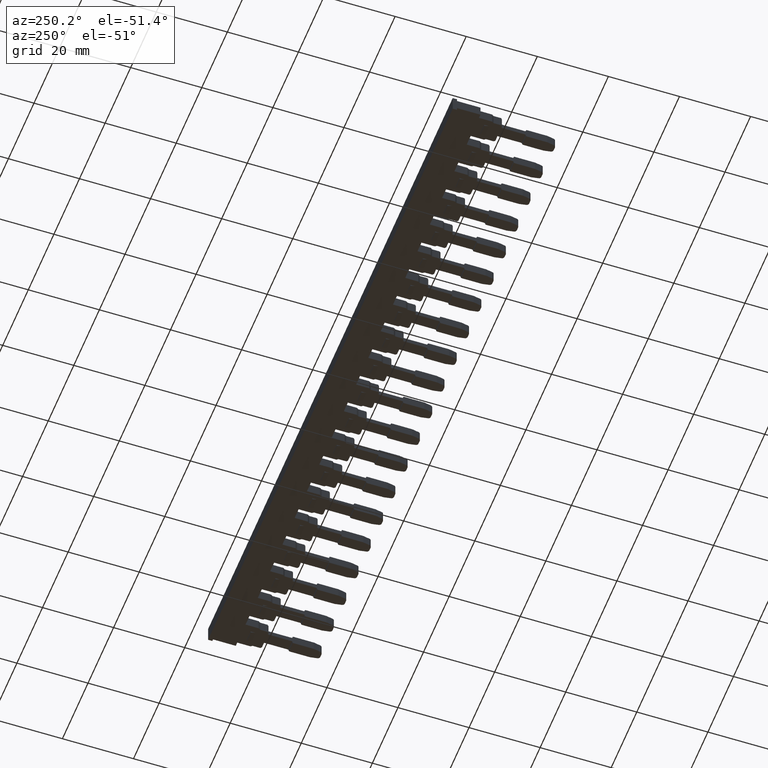
[diagram: clean part render]
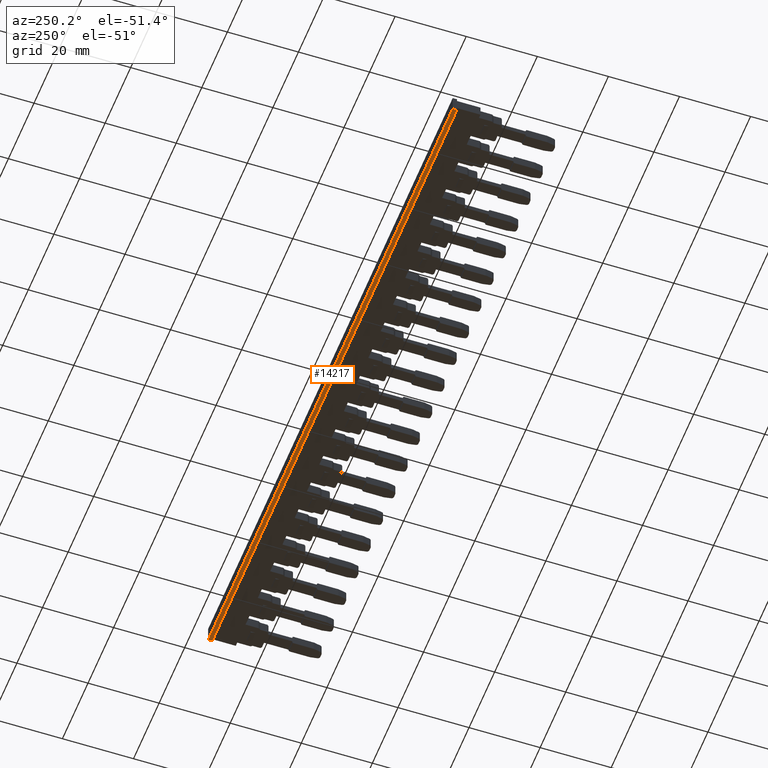
[diagram: same view with one face highlighted and labeled with its STEP entity id]
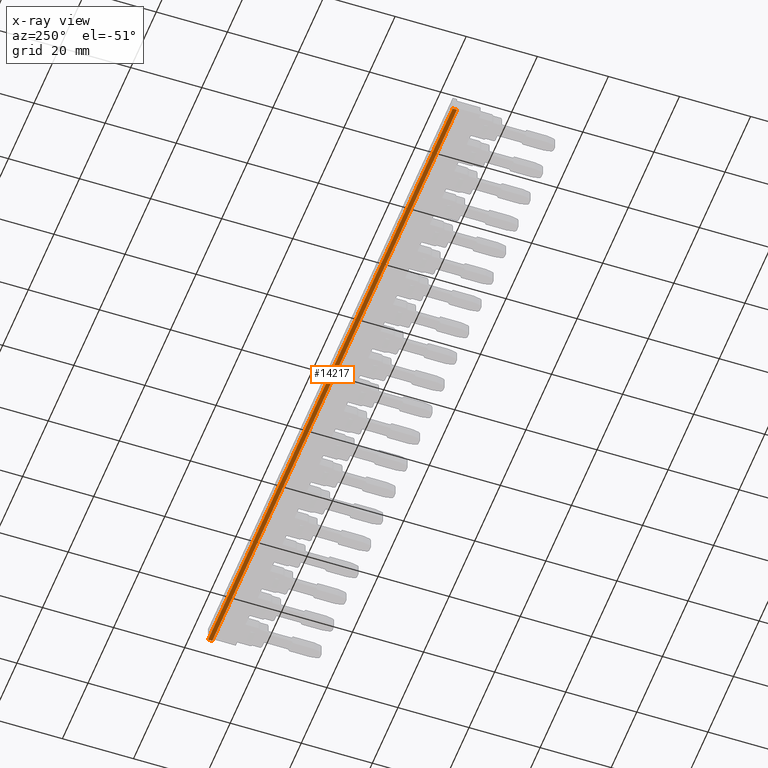
[diagram: x-ray of the same camera — body ghosted, the highlighted face saturated]
A machine part, auxiliary view. The second image highlights one B-rep face of the part: STEP entity #14217.
The next image is the same camera in x-ray: the body ghosted, the highlighted face saturated — about 0% of this face is hidden behind the body in this view.
In plain terms, the highlighted planar face has unit normal (0, 0, 1).
Its self-contained STEP definition (entity closure, byte-faithful):
#112 = VECTOR ( 'NONE', #15191, 1000.000000000000000 ) ;
#114 = VECTOR ( 'NONE', #15233, 1000.000000000000000 ) ;
#2488 = ORIENTED_EDGE ( 'NONE', *, *, #12946, .T. ) ;
#2524 = ORIENTED_EDGE ( 'NONE', *, *, #18511, .F. ) ;
#2534 = ORIENTED_EDGE ( 'NONE', *, *, #18512, .F. ) ;
#2542 = ORIENTED_EDGE ( 'NONE', *, *, #12987, .F. ) ;
#5246 = VECTOR ( 'NONE', #19028, 1000.000000000000000 ) ;
#5288 = VECTOR ( 'NONE', #19008, 1000.000000000000000 ) ;
#6033 = VERTEX_POINT ( 'NONE', #11100 ) ;
#6045 = VERTEX_POINT ( 'NONE', #11172 ) ;
#6075 = VERTEX_POINT ( 'NONE', #11198 ) ;
#6121 = VERTEX_POINT ( 'NONE', #11207 ) ;
#11100 = CARTESIAN_POINT ( 'NONE',  ( 966.3944708023301500, 674.2878760720548100, -0.7499999999999997800 ) ) ;
#11172 = CARTESIAN_POINT ( 'NONE',  ( 1157.594465032600300, 674.2878760720548100, -0.7499999999999997800 ) ) ;
#11198 = CARTESIAN_POINT ( 'NONE',  ( 966.3944708023301500, 673.0878760720547700, -0.7499999999999997800 ) ) ;
#11207 = CARTESIAN_POINT ( 'NONE',  ( 1157.594465032600300, 673.0878760720547700, -0.7499999999999997800 ) ) ;
#12946 = EDGE_CURVE ( 'NONE', #6033, #6045, #15188, .T. ) ;
#12987 = EDGE_CURVE ( 'NONE', #6033, #6075, #15228, .T. ) ;
#14217 = ADVANCED_FACE ( 'NONE', ( #19352 ), #19314, .F. ) ;
#15184 = CARTESIAN_POINT ( 'NONE',  ( 1129.594470802330100, 674.2878760720548100, -0.7499999999999997800 ) ) ;
#15188 = LINE ( 'NONE', #15184, #112 ) ;
#15191 = DIRECTION ( 'NONE',  ( 1.000000000000000000, 0.0000000000000000000, 0.0000000000000000000 ) ) ;
#15216 = CARTESIAN_POINT ( 'NONE',  ( 966.3944708023301500, 673.0878760720547700, -0.7499999999999997800 ) ) ;
#15228 = LINE ( 'NONE', #15216, #114 ) ;
#15233 = DIRECTION ( 'NONE',  ( 0.0000000000000000000, -1.000000000000000000, -0.0000000000000000000 ) ) ;
#18511 = EDGE_CURVE ( 'NONE', #6075, #6121, #19026, .T. ) ;
#18512 = EDGE_CURVE ( 'NONE', #6121, #6045, #19029, .T. ) ;
#18998 = CARTESIAN_POINT ( 'NONE',  ( 1157.594465032600300, 673.0878760720547700, -0.7499999999999997800 ) ) ;
#19008 = DIRECTION ( 'NONE',  ( -0.0000000000000000000, 1.000000000000000000, 0.0000000000000000000 ) ) ;
#19018 = CARTESIAN_POINT ( 'NONE',  ( 1129.594470802330100, 673.0878760720547700, -0.7499999999999997800 ) ) ;
#19026 = LINE ( 'NONE', #19018, #5246 ) ;
#19028 = DIRECTION ( 'NONE',  ( 1.000000000000000000, 0.0000000000000000000, 0.0000000000000000000 ) ) ;
#19029 = LINE ( 'NONE', #18998, #5288 ) ;
#19314 = PLANE ( 'NONE',  #24339 ) ;
#19352 = FACE_OUTER_BOUND ( 'NONE', #24766, .T. ) ;
#19355 = DIRECTION ( 'NONE',  ( 1.000000000000000000, 0.0000000000000000000, -0.0000000000000000000 ) ) ;
#19364 = DIRECTION ( 'NONE',  ( 0.0000000000000000000, 0.0000000000000000000, 1.000000000000000000 ) ) ;
#19404 = CARTESIAN_POINT ( 'NONE',  ( 1129.594470802330100, 673.0878760720547700, -0.7499999999999997800 ) ) ;
#24339 = AXIS2_PLACEMENT_3D ( 'NONE', #19404, #19364, #19355 ) ;
#24766 = EDGE_LOOP ( 'NONE', ( #2534, #2524, #2542, #2488 ) ) ;